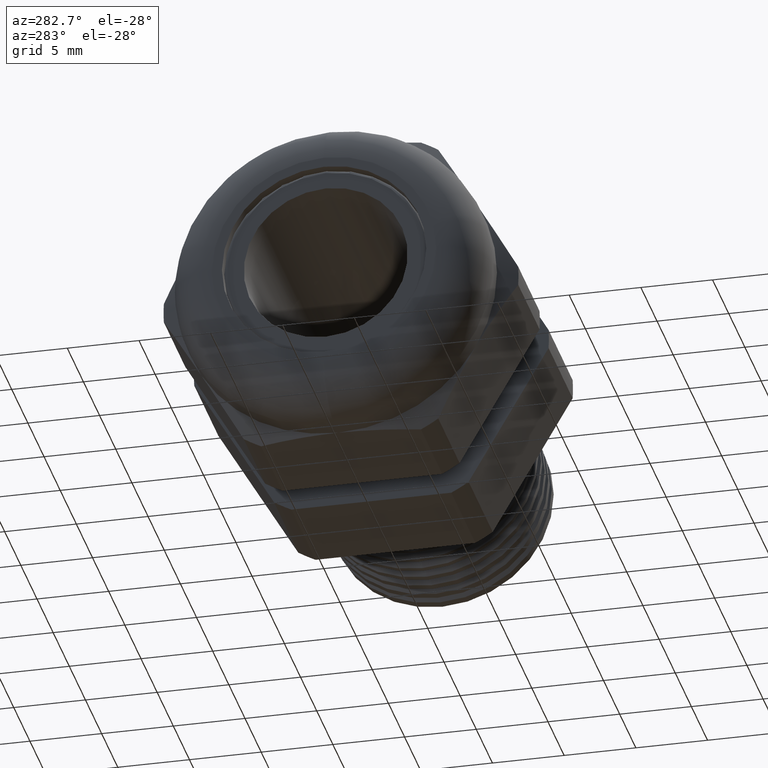
[diagram: clean part render]
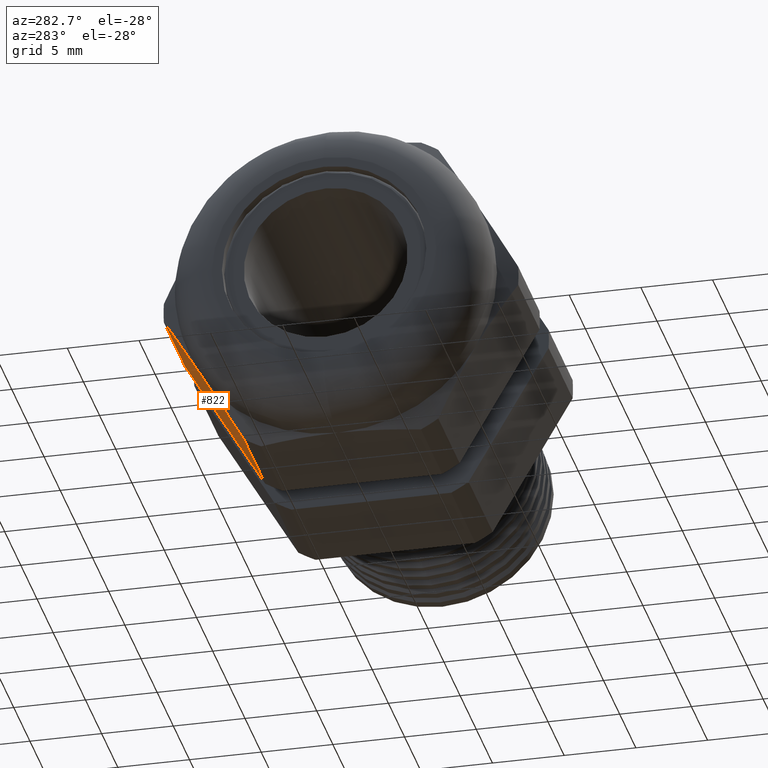
[diagram: same view with one face highlighted and labeled with its STEP entity id]
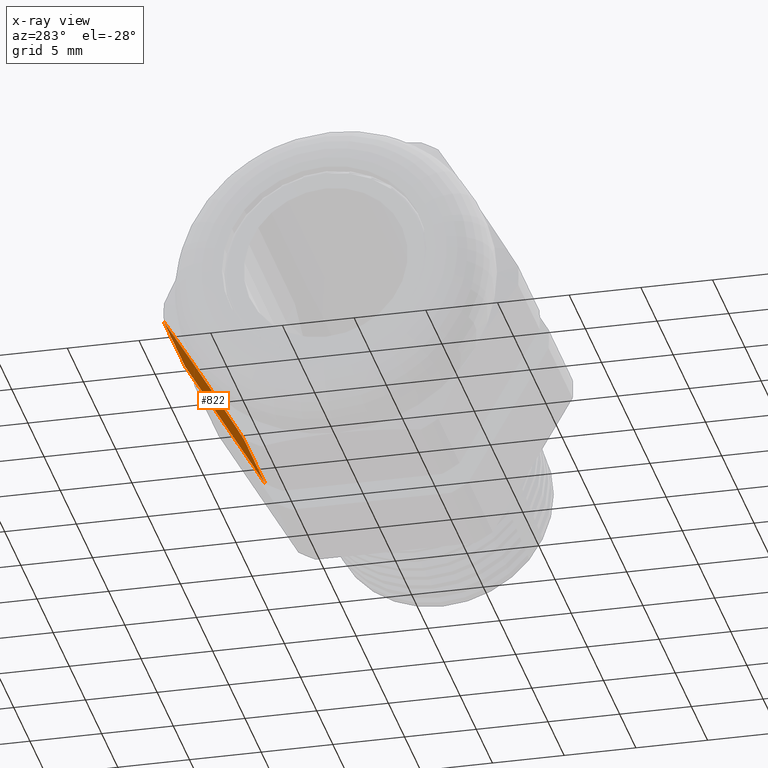
[diagram: x-ray of the same camera — body ghosted, the highlighted face saturated]
A machine part, auxiliary view. The second image highlights one B-rep face of the part: STEP entity #822.
The next image is the same camera in x-ray: the body ghosted, the highlighted face saturated — about 0% of this face is hidden behind the body in this view.
In plain terms, the highlighted planar face has unit normal (0, 0.866, -0.5).
Its self-contained STEP definition (entity closure, byte-faithful):
#521 = VERTEX_POINT ( 'NONE', #2078 ) ;
#629 = EDGE_CURVE ( 'NONE', #841, #726, #2311, .T. ) ;
#722 = VERTEX_POINT ( 'NONE', #2449 ) ;
#725 = EDGE_CURVE ( 'NONE', #722, #726, #2447, .T. ) ;
#726 = VERTEX_POINT ( 'NONE', #2506 ) ;
#812 = VERTEX_POINT ( 'NONE', #2650 ) ;
#822 = ADVANCED_FACE ( 'NONE', ( #2678 ), #2677, .T. ) ;
#823 = ORIENTED_EDGE ( 'NONE', *, *, #725, .F. ) ;
#824 = ORIENTED_EDGE ( 'NONE', *, *, #825, .T. ) ;
#825 = EDGE_CURVE ( 'NONE', #722, #521, #2672, .T. ) ;
#826 = ORIENTED_EDGE ( 'NONE', *, *, #827, .T. ) ;
#827 = EDGE_CURVE ( 'NONE', #521, #812, #2665, .T. ) ;
#828 = ORIENTED_EDGE ( 'NONE', *, *, #861, .T. ) ;
#829 = ORIENTED_EDGE ( 'NONE', *, *, #629, .T. ) ;
#841 = VERTEX_POINT ( 'NONE', #2696 ) ;
#857 = EDGE_LOOP ( 'NONE', ( #823, #824, #826, #828, #829 ) ) ;
#861 = EDGE_CURVE ( 'NONE', #812, #841, #2765, .T. ) ;
#2078 = CARTESIAN_POINT ( 'NONE',  ( -0.6937499999999999800, 0.3767210506462309000, -0.2174999999999996900 ) ) ;
#2308 = DIRECTION ( 'NONE',  ( 0.0000000000000000000, -0.4999999999999994400, -0.8660254037844389300 ) ) ;
#2309 = VECTOR ( 'NONE', #2308, 39.37007874015748100 ) ;
#2310 = CARTESIAN_POINT ( 'NONE',  ( -0.4037499999999999400, 0.4668210506462307000, -0.06144222223804397100 ) ) ;
#2311 = LINE ( 'NONE', #2310, #2309 ) ;
#2447 = LINE ( 'NONE', #2509, #2508 ) ;
#2449 = CARTESIAN_POINT ( 'NONE',  ( -0.6636123159483016100, 0.2670182247938399600, -0.4075108681102214100 ) ) ;
#2506 = CARTESIAN_POINT ( 'NONE',  ( -0.4037499999999999400, 0.2670182247938400200, -0.4075108681102214700 ) ) ;
#2507 = DIRECTION ( 'NONE',  ( 1.000000000000000000, 0.0000000000000000000, 0.0000000000000000000 ) ) ;
#2508 = VECTOR ( 'NONE', #2507, 39.37007874015748100 ) ;
#2509 = CARTESIAN_POINT ( 'NONE',  ( -2.085539792128106900, 0.2670182247938400200, -0.4075108681102214700 ) ) ;
#2650 = CARTESIAN_POINT ( 'NONE',  ( -0.6636123159483016100, 0.4864238764986216800, -0.02748913188977817800 ) ) ;
#2663 = CARTESIAN_POINT ( 'NONE',  ( -0.6937499999999999800, 0.3767210506462309000, -0.2174999999999996900 ) ) ;
#2665 = B_SPLINE_CURVE_WITH_KNOTS ( 'NONE', 3,
 ( #2663, #2721, #2720, #2719, #2718, #2717, #2716, #2715 ),
 .UNSPECIFIED., .F., .F.,
 ( 4, 2, 2, 4 ),
 ( 0.005623470342415569200, 0.007019771465515202100, 0.008416072588614835800, 0.01120867483481410000 ),
 .UNSPECIFIED. ) ;
#2666 = CARTESIAN_POINT ( 'NONE',  ( -0.6937499999999999800, 0.3767210506462309000, -0.2174999999999996900 ) ) ;
#2667 = CARTESIAN_POINT ( 'NONE',  ( -0.6937499999999997600, 0.3581602426728417400, -0.2496482624394391600 ) ) ;
#2668 = CARTESIAN_POINT ( 'NONE',  ( -0.6909703606031720700, 0.3397527252372444200, -0.2815310178791037300 ) ) ;
#2669 = CARTESIAN_POINT ( 'NONE',  ( -0.6805811775536698700, 0.3032040481611315000, -0.3448351835243595500 ) ) ;
#2670 = CARTESIAN_POINT ( 'NONE',  ( -0.6729950122960578500, 0.2850615992574273600, -0.3762588267992976200 ) ) ;
#2671 = CARTESIAN_POINT ( 'NONE',  ( -0.6636123159483016100, 0.2670182247938399600, -0.4075108681102214100 ) ) ;
#2672 = B_SPLINE_CURVE_WITH_KNOTS ( 'NONE', 3,
 ( #2671, #2670, #2669, #2668, #2667, #2666 ),
 .UNSPECIFIED., .F., .F.,
 ( 4, 2, 4 ),
 ( 2.361310027939624600E-007, 0.002811853236709181800, 0.005623470342415569200 ),
 .UNSPECIFIED. ) ;
#2673 = DIRECTION ( 'NONE',  ( 0.0000000000000000000, 0.4999999999999994400, 0.8660254037844389300 ) ) ;
#2674 = DIRECTION ( 'NONE',  ( 0.0000000000000000000, 0.8660254037844390400, -0.4999999999999995000 ) ) ;
#2675 = CARTESIAN_POINT ( 'NONE',  ( -2.085539792128106900, 0.2670182247938400200, -0.4075108681102214700 ) ) ;
#2676 = AXIS2_PLACEMENT_3D ( 'NONE', #2675, #2674, #2673 ) ;
#2677 = PLANE ( 'NONE',  #2676 ) ;
#2678 = FACE_OUTER_BOUND ( 'NONE', #857, .T. ) ;
#2696 = CARTESIAN_POINT ( 'NONE',  ( -0.4037499999999999400, 0.4864238764986217300, -0.02748913188977816400 ) ) ;
#2715 = CARTESIAN_POINT ( 'NONE',  ( -0.6636123159483016100, 0.4864238764986216800, -0.02748913188977817800 ) ) ;
#2716 = CARTESIAN_POINT ( 'NONE',  ( -0.6729506885249696400, 0.4684657387697100900, -0.05859353884557212000 ) ) ;
#2717 = CARTESIAN_POINT ( 'NONE',  ( -0.6805361424846490000, 0.4503640277159276500, -0.08994662209465471800 ) ) ;
#2718 = CARTESIAN_POINT ( 'NONE',  ( -0.6883511813166663900, 0.4229196209126646100, -0.1374817290614954700 ) ) ;
#2719 = CARTESIAN_POINT ( 'NONE',  ( -0.6903620385614671600, 0.4137228208108983400, -0.1534110541048094900 ) ) ;
#2720 = CARTESIAN_POINT ( 'NONE',  ( -0.6930659347075880400, 0.3952212843008445200, -0.1854566553583134000 ) ) ;
#2721 = CARTESIAN_POINT ( 'NONE',  ( -0.6937499999999997600, 0.3859386916138720100, -0.2015345775181168200 ) ) ;
#2762 = DIRECTION ( 'NONE',  ( 1.000000000000000000, 0.0000000000000000000, 0.0000000000000000000 ) ) ;
#2763 = VECTOR ( 'NONE', #2762, 39.37007874015748100 ) ;
#2764 = CARTESIAN_POINT ( 'NONE',  ( -2.085539792128106900, 0.4864238764986216800, -0.02748913188977816100 ) ) ;
#2765 = LINE ( 'NONE', #2764, #2763 ) ;